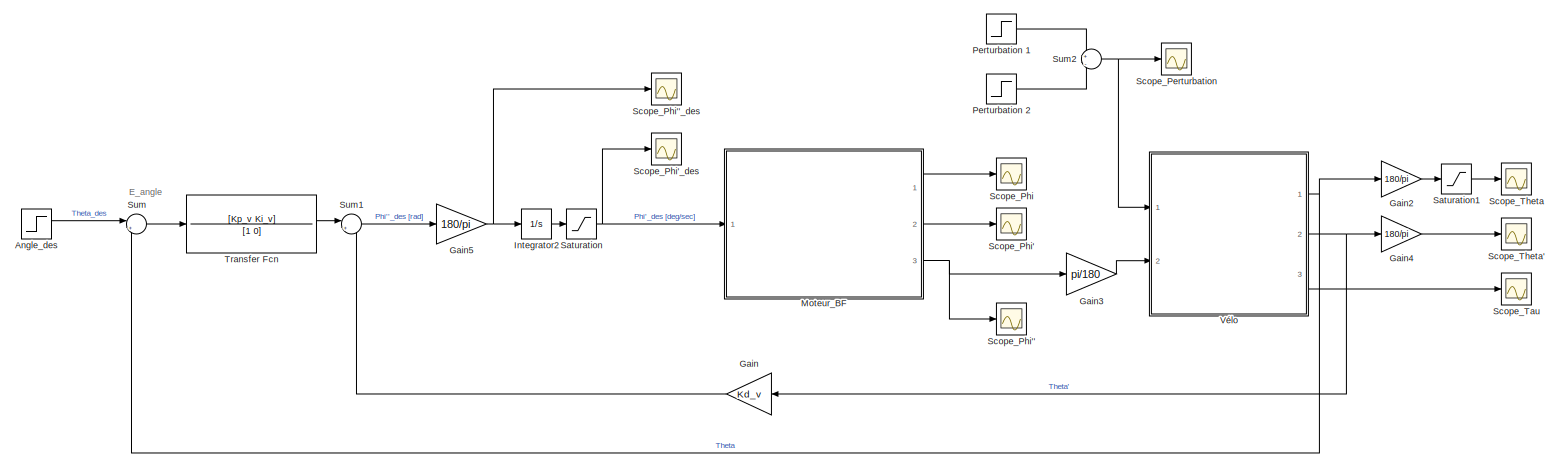
[diagram: root canvas - part 1/1, most of the canvas]
MODEL slx_7f8b4d83bcae
KIND model
CONFIG AbsTol = auto
CONFIG EnableMultiTasking = off
CONFIG FixedStep = 0.0001
CONFIG MaxStep = auto
CONFIG MinStep = auto
CONFIG RelTol = 1e-3
CONFIG SampleTimeConstraint = Unconstrained
CONFIG Solver = ode45
CONFIG SolverName = ode45
CONFIG StartTime = 0.0
CONFIG StopTime = simTime
BLOCK [Step] Angle_des 
  After = 0
  SampleTime = 0
  Time = 0
BLOCK [Gain] Gain
  Gain = Kd_v
  OutDataTypeStr = Inherit: Inherit via internal rule
  ParamDataTypeStr = Inherit: Inherit via internal rule
  SaturateOnIntegerOverflow = off
BLOCK [Gain] Gain2
  Gain = 180/pi
  OutDataTypeStr = Inherit: Inherit via internal rule
  ParamDataTypeStr = Inherit: Inherit via internal rule
  SaturateOnIntegerOverflow = off
BLOCK [Gain] Gain3
  Gain = pi/180
  OutDataTypeStr = Inherit: Inherit via internal rule
  ParamDataTypeStr = Inherit: Inherit via internal rule
  SaturateOnIntegerOverflow = off
BLOCK [Gain] Gain4
  Gain = 180/pi
  OutDataTypeStr = Inherit: Inherit via internal rule
  ParamDataTypeStr = Inherit: Inherit via internal rule
  SaturateOnIntegerOverflow = off
BLOCK [Gain] Gain5
  Gain = 180/pi
  OutDataTypeStr = Inherit: Inherit via internal rule
  ParamDataTypeStr = Inherit: Inherit via internal rule
  SaturateOnIntegerOverflow = off
BLOCK [Integrator] Integrator2
  Ports = [1, 1]
BLOCK [ModelReference] Moteur_BF 
  ModelNameDialog = Moteur_BF
  ModelReferenceVersion = 1.78
  Ports = [1, 3]
BLOCK [Step] Perturbation 1 
  After = p
  SampleTime = 0
  Time = 0.1
BLOCK [Step] Perturbation 2
  After = p
  SampleTime = 0
  Time = 0.3
BLOCK [Saturate] Saturation
  InputPortMap = u0
  LowerLimit = -8000
  Ports = [1, 1]
  UpperLimit = 8000
BLOCK [Saturate] Saturation1
  InputPortMap = u0
  LowerLimit = -20
  Ports = [1, 1]
  UpperLimit = 20
BLOCK [Scope] Scope_Perturbation
  Floating = off
  NumInputPorts = 1
  Ports = [1]
  ScopeSpecificationString = Simulink.scopes.TimeScopeBlockCfg('CurrentConfiguration', extmgr.ConfigurationSet(extmgr.Configuration('Core','General UI',true),extmgr.Configuration('Core','Source UI',true),extmgr.Configuration('Sources','WiredSimulink',true,'DataLoggingVariableName','ScopeData1'),extmgr.Configuration('Visuals','Time Domain',true,'SerializedDisplays',{struct('MinYLimReal','-0.00362','MaxYLimReal','0.03263','YLab...<+1363ch>
BLOCK [Scope] Scope_Phi
  Floating = off
  NumInputPorts = 1
  Ports = [1]
  ScopeSpecificationString = Simulink.scopes.TimeScopeBlockCfg('CurrentConfiguration', extmgr.ConfigurationSet(extmgr.Configuration('Core','General UI',true),extmgr.Configuration('Core','Source UI',true),extmgr.Configuration('Sources','WiredSimulink',true,'DataLoggingVariableName','ScopeData4','DataLogging',true,'DataLoggingSaveFormat','Array'),extmgr.Configuration('Visuals','Time Domain',true,'SerializedDisplays',{struct('Mi...<+1441ch>
BLOCK [Scope] Scope_Phi'
  Floating = off
  NumInputPorts = 1
  Ports = [1]
  ScopeSpecificationString = Simulink.scopes.TimeScopeBlockCfg('CurrentConfiguration', extmgr.ConfigurationSet(extmgr.Configuration('Core','General UI',true),extmgr.Configuration('Core','Source UI',true),extmgr.Configuration('Sources','WiredSimulink',true,'DataLogging',true,'DataLoggingVariableName','Phi_dot','DataLoggingSaveFormat','Array','SampleTime','0.0001'),extmgr.Configuration('Visuals','Time Domain',true,'SerializedDi...<+1532ch>
BLOCK [Scope] Scope_Phi''
  Floating = off
  NumInputPorts = 1
  Ports = [1]
  ScopeSpecificationString = Simulink.scopes.TimeScopeBlockCfg('CurrentConfiguration', extmgr.ConfigurationSet(extmgr.Configuration('Core','General UI',true),extmgr.Configuration('Core','Source UI',true),extmgr.Configuration('Sources','WiredSimulink',true,'DataLogging',true,'DataLoggingVariableName','Phi_dot1','DataLoggingSaveFormat','Array','SampleTime','0.0001'),extmgr.Configuration('Visuals','Time Domain',true,'SerializedD...<+1534ch>
BLOCK [Scope] Scope_Phi''_des
  Floating = off
  NumInputPorts = 1
  Ports = [1]
  ScopeSpecificationString = Simulink.scopes.TimeScopeBlockCfg('CurrentConfiguration', extmgr.ConfigurationSet(extmgr.Configuration('Core','General UI',true),extmgr.Configuration('Core','Source UI',true),extmgr.Configuration('Sources','WiredSimulink',true,'DataLoggingVariableName','Phi_dot_dot_des','DataLogging',true,'DataLoggingSaveFormat','Array'),extmgr.Configuration('Visuals','Time Domain',true,'SerializedDisplays',{struc...<+1475ch>
BLOCK [Scope] Scope_Phi'_des
  Floating = off
  NumInputPorts = 1
  Ports = [1]
  ScopeSpecificationString = Simulink.scopes.TimeScopeBlockCfg('CurrentConfiguration', extmgr.ConfigurationSet(extmgr.Configuration('Core','General UI',true),extmgr.Configuration('Core','Source UI',true),extmgr.Configuration('Sources','WiredSimulink',true,'DataLoggingVariableName','Phi_dot_des','DataLogging',true,'DataLoggingSaveFormat','Array'),extmgr.Configuration('Visuals','Time Domain',true,'SerializedDisplays',{struct('M...<+1502ch>
BLOCK [Scope] Scope_Tau
  Floating = off
  NumInputPorts = 1
  Ports = [1]
  ScopeSpecificationString = Simulink.scopes.TimeScopeBlockCfg('CurrentConfiguration', extmgr.ConfigurationSet(extmgr.Configuration('Core','General UI',true),extmgr.Configuration('Core','Source UI',true),extmgr.Configuration('Sources','WiredSimulink',true,'DataLoggingVariableName','Tau','DataLogging',true,'DataLoggingSaveFormat','Structure'),extmgr.Configuration('Visuals','Time Domain',true,'SerializedDisplays',{struct('MinYL...<+1430ch>
BLOCK [Scope] Scope_Theta
  Floating = off
  NumInputPorts = 1
  Ports = [1]
  ScopeSpecificationString = Simulink.scopes.TimeScopeBlockCfg('CurrentConfiguration', extmgr.ConfigurationSet(extmgr.Configuration('Core','General UI',true),extmgr.Configuration('Core','Source UI',true),extmgr.Configuration('Sources','WiredSimulink',true,'DataLoggingVariableName','Theta_BF','DataLogging',true,'DataLoggingSaveFormat','Array'),extmgr.Configuration('Visuals','Time Domain',true,'SerializedDisplays',{struct('MinY...<+1479ch>
BLOCK [Scope] Scope_Theta'
  Floating = off
  NumInputPorts = 1
  Ports = [1]
  ScopeSpecificationString = Simulink.scopes.TimeScopeBlockCfg('CurrentConfiguration', extmgr.ConfigurationSet(extmgr.Configuration('Core','General UI',true),extmgr.Configuration('Core','Source UI',true),extmgr.Configuration('Sources','WiredSimulink',true,'DataLoggingVariableName','Theta_dot_BF','DataLogging',true,'DataLoggingSaveFormat','Array'),extmgr.Configuration('Visuals','Time Domain',true,'SerializedDisplays',{struct('...<+1454ch>
BLOCK [Sum] Sum
  IconShape = round
  InputSameDT = off
  Inputs = |+-
  OutDataTypeStr = Inherit: Inherit via internal rule
  Ports = [2, 1]
  SaturateOnIntegerOverflow = off
BLOCK [Sum] Sum1
  IconShape = round
  InputSameDT = off
  Inputs = |+-
  OutDataTypeStr = Inherit: Inherit via internal rule
  Ports = [2, 1]
  SaturateOnIntegerOverflow = off
BLOCK [Sum] Sum2
  IconShape = round
  InputSameDT = off
  Inputs = +|-
  OutDataTypeStr = Inherit: Inherit via internal rule
  Ports = [2, 1]
  SaturateOnIntegerOverflow = off
BLOCK [TransferFcn] Transfer Fcn
  Denominator = [1 0]
  Numerator = [Kp_v Ki_v]
BLOCK [ModelReference] Vélo
  InitialCondition = AngleInitial*pi/180
  ModelNameDialog = Velo
  ModelReferenceVersion = 1.73
  ParameterArgumentNames = InitialCondition
  ParameterArgumentValues = InitialCondition
  Ports = [2, 3]
  UsingDefaultArgumentValue = 0
ANNOTATION (root): E_angle
LINE Angle_des :1 -> Sum:1
LINE Gain2:1 -> Saturation1:1
LINE Gain3:1 -> Vélo:2
LINE Gain4:1 -> Scope_Theta':1
NET Gain5:1 -> Integrator2:1, Scope_Phi''_des:1
LINE Gain:1 -> Sum1:2
LINE Integrator2:1 -> Saturation:1
LINE Moteur_BF :1 -> Scope_Phi:1
LINE Moteur_BF :2 -> Scope_Phi':1
NET Moteur_BF :3 -> Gain3:1, Scope_Phi'':1
LINE Perturbation 1 :1 -> Sum2:1
LINE Perturbation 2:1 -> Sum2:2
LINE Saturation1:1 -> Scope_Theta:1
NET Saturation:1 -> Moteur_BF :1, Scope_Phi'_des:1
LINE Sum1:1 -> Gain5:1
NET Sum2:1 -> Scope_Perturbation:1, Vélo:1
LINE Sum:1 -> Transfer Fcn:1
LINE Transfer Fcn:1 -> Sum1:1
NET Vélo:1 -> Gain2:1, Sum:2
NET Vélo:2 -> Gain4:1, Gain:1
LINE Vélo:3 -> Scope_Tau:1
note: NET lines group one-source signal fan-out (src -> all destinations, sorted); 1:1 wires keep LINE
